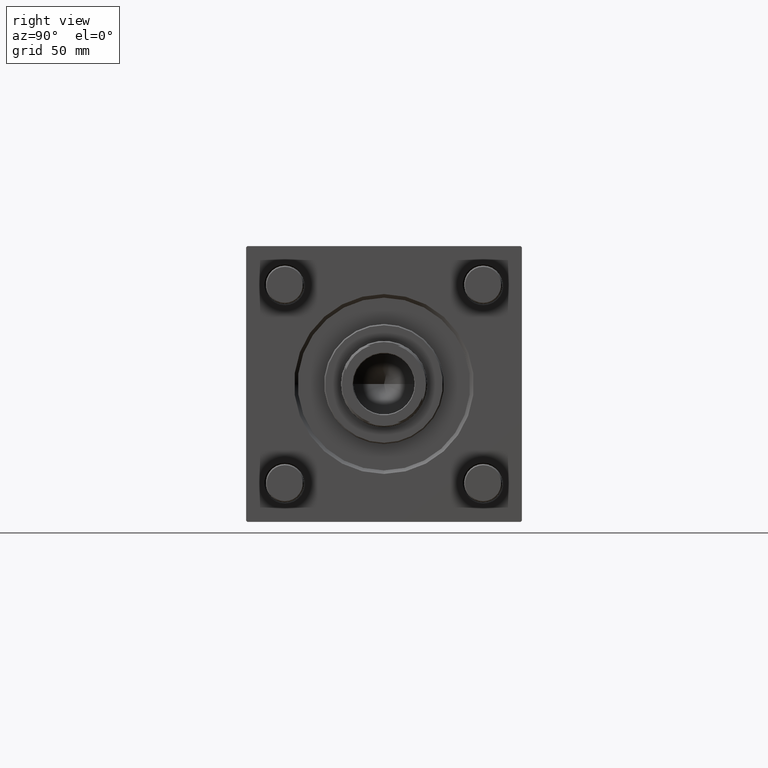
[diagram: clean part render]
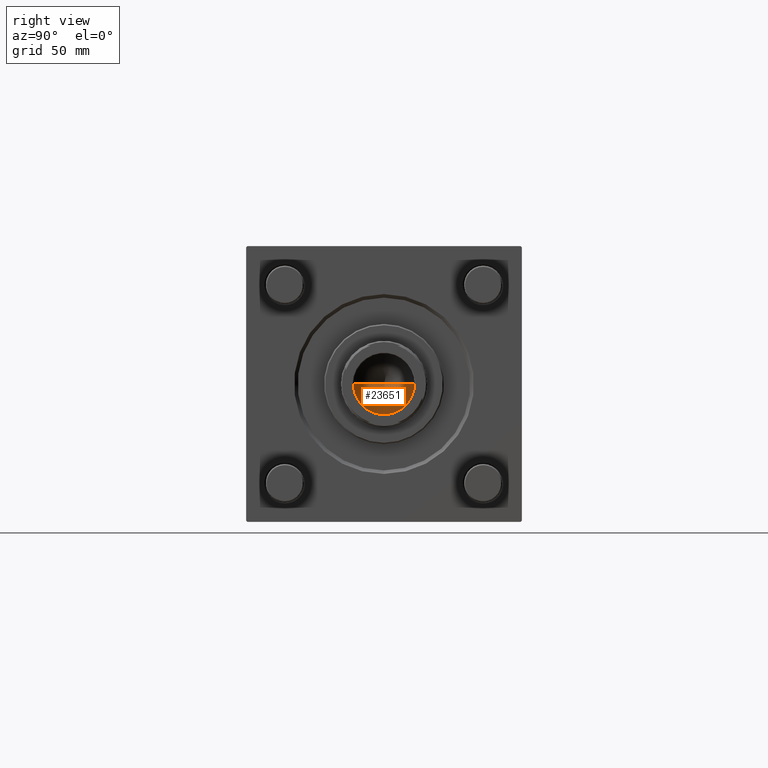
[diagram: same view with one face highlighted and labeled with its STEP entity id]
A machine part, right view. The second image highlights one B-rep face of the part: STEP entity #23651.
In plain terms, the highlighted conical surface has half-angle 59 deg.
Its self-contained STEP definition (entity closure, byte-faithful):
#2623 = DIRECTION ( 'NONE',  ( -0.8571673007021117785, 1.049727191138617956E-16, 0.5150380749100550437 ) ) ;
#3254 = VERTEX_POINT ( 'NONE', #14556 ) ;
#5593 = DIRECTION ( 'NONE',  ( 0.8571673007021117785, 0.000000000000000000, 0.5150380749100550437 ) ) ;
#9534 = DIRECTION ( 'NONE',  ( 1.000000000000000000, 0.000000000000000000, 0.000000000000000000 ) ) ;
#13005 = DIRECTION ( 'NONE',  ( 1.000000000000000000, 0.000000000000000000, 0.000000000000000000 ) ) ;
#13415 = CARTESIAN_POINT ( 'NONE',  ( -1.410643066818227497E-14, 0.000000000000000000, 113.3390271073986071 ) ) ;
#13579 = DIRECTION ( 'NONE',  ( -0.000000000000000000, -0.000000000000000000, 1.000000000000000000 ) ) ;
#14264 = CARTESIAN_POINT ( 'NONE',  ( 12.74999999999998934, 0.000000000000000000, 121.0000000000000142 ) ) ;
#14556 = CARTESIAN_POINT ( 'NONE',  ( 12.74999999999998934, 0.000000000000000000, 121.0000000000000142 ) ) ;
#15484 = ORIENTED_EDGE ( 'NONE', *, *, #50062, .F. ) ;
#16846 = CIRCLE ( 'NONE', #56536, 12.74999999999998934 ) ;
#17467 = ORIENTED_EDGE ( 'NONE', *, *, #43657, .T. ) ;
#20248 = CARTESIAN_POINT ( 'NONE',  ( -12.74999999999998934, 1.561424668912873928E-15, 121.0000000000000142 ) ) ;
#20965 = EDGE_CURVE ( 'NONE', #30645, #3254, #49802, .T. ) ;
#21383 = CARTESIAN_POINT ( 'NONE',  ( -12.74999999999998934, 1.561424668912873928E-15, 121.0000000000000142 ) ) ;
#23651 = ADVANCED_FACE ( 'NONE', ( #40446 ), #41780, .F. ) ;
#30008 = VERTEX_POINT ( 'NONE', #21383 ) ;
#30645 = VERTEX_POINT ( 'NONE', #13415 ) ;
#31476 = CARTESIAN_POINT ( 'NONE',  ( 0.000000000000000000, 0.000000000000000000, 121.0000000000000142 ) ) ;
#35285 = AXIS2_PLACEMENT_3D ( 'NONE', #31476, #13579, #9534 ) ;
#39327 = ORIENTED_EDGE ( 'NONE', *, *, #20965, .T. ) ;
#40446 = FACE_OUTER_BOUND ( 'NONE', #54334, .T. ) ;
#40948 = CARTESIAN_POINT ( 'NONE',  ( 0.000000000000000000, 0.000000000000000000, 121.0000000000000142 ) ) ;
#41780 = CONICAL_SURFACE ( 'NONE', #35285, 12.74999999999998934, 1.029744258676653423 ) ;
#42204 = LINE ( 'NONE', #20248, #54755 ) ;
#43345 = DIRECTION ( 'NONE',  ( -0.000000000000000000, -0.000000000000000000, 1.000000000000000000 ) ) ;
#43542 = VECTOR ( 'NONE', #5593, 1000.000000000000000 ) ;
#43657 = EDGE_CURVE ( 'NONE', #3254, #30008, #16846, .T. ) ;
#49802 = LINE ( 'NONE', #14264, #43542 ) ;
#50062 = EDGE_CURVE ( 'NONE', #30645, #30008, #42204, .T. ) ;
#54334 = EDGE_LOOP ( 'NONE', ( #15484, #39327, #17467 ) ) ;
#54755 = VECTOR ( 'NONE', #2623, 1000.000000000000000 ) ;
#56536 = AXIS2_PLACEMENT_3D ( 'NONE', #40948, #43345, #13005 ) ;